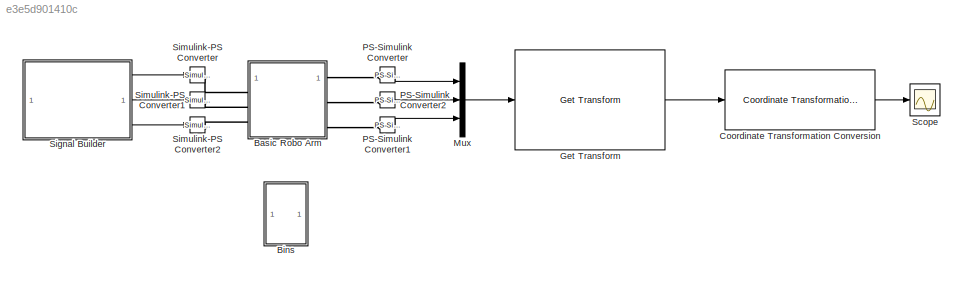
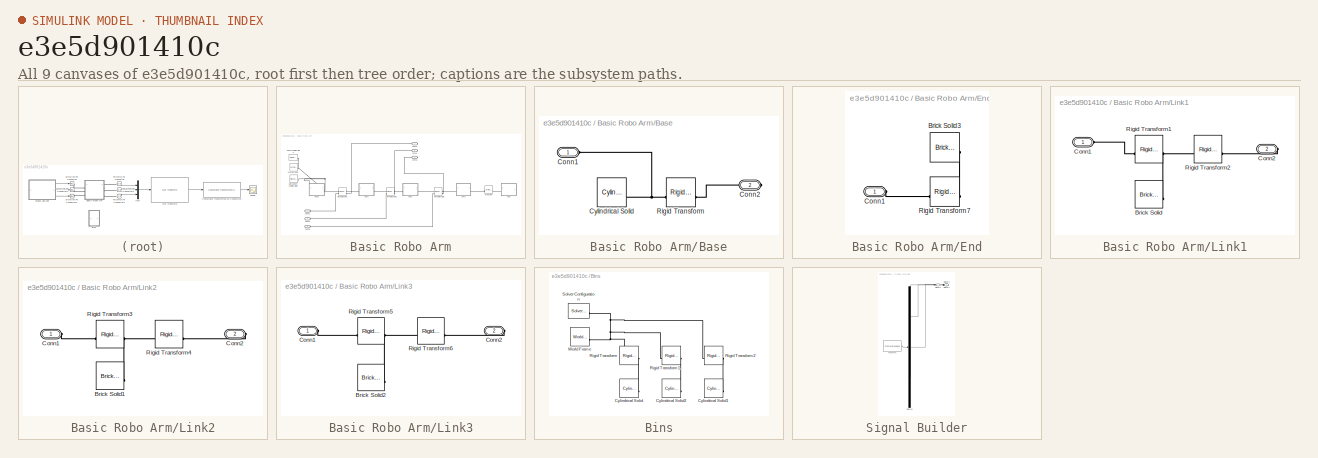
[diagram: thumbnail index - all 9 canvases of the model, root first then tree order]
MODEL slx_e3e5d901410c
KIND model
CONFIG AbsTol = auto
CONFIG EnableMultiTasking = off
CONFIG FixedStep = auto
CONFIG MaxStep = auto
CONFIG MinStep = auto
CONFIG RelTol = 1e-3
CONFIG SampleTimeConstraint = Unconstrained
CONFIG SolverName = VariableStepAuto
CONFIG StartTime = 0.0
CONFIG StopTime = 10.0
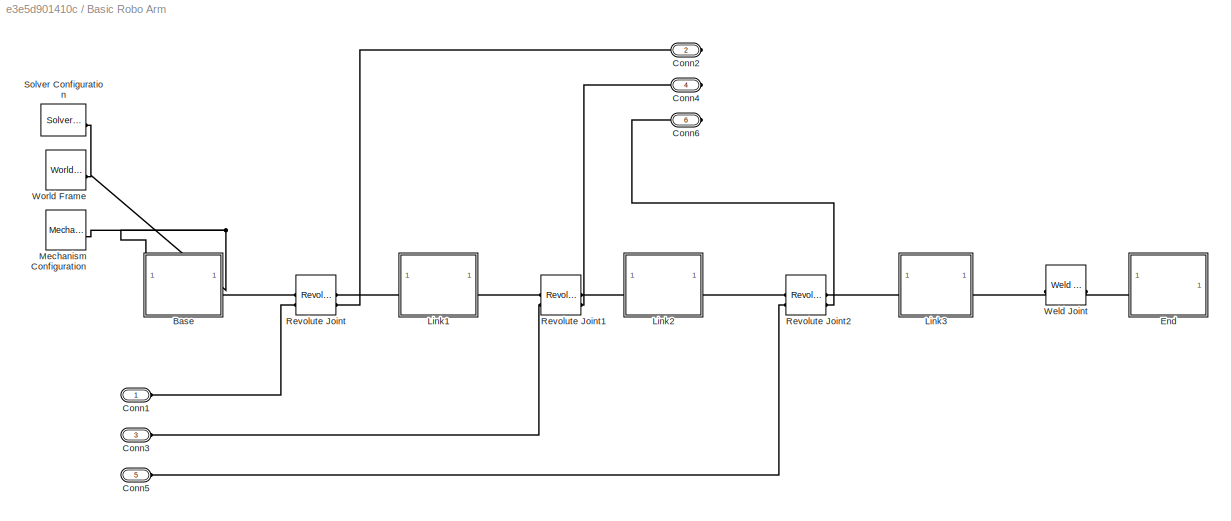
BLOCK [SubSystem] Basic Robo Arm
BLOCK [SubSystem] Basic Robo Arm/Base
BLOCK [PMIOPort] Basic Robo Arm/Base/Conn1
  Side = Left
BLOCK [PMIOPort] Basic Robo Arm/Base/Conn2
  Port = 2
  Side = Right
BLOCK [Reference] Basic Robo Arm/Base/Cylindrical Solid  REF=sm_lib/Body Elements/Cylindrical Solid
  SourceBlock = sm_lib/Body Elements/Cylindrical Solid
  SourceType = Cylindrical Solid
BLOCK [Reference] Basic Robo Arm/Base/Rigid Transform  REF=sm_lib/Frames and
Transforms/Rigid
Transform
  SourceBlock = sm_lib/Frames and\nTransforms/Rigid\nTransform
  SourceType = Rigid\nTransform
BLOCK [PMIOPort] Basic Robo Arm/Conn1
  Side = Left
BLOCK [PMIOPort] Basic Robo Arm/Conn2
  Port = 2
  Side = Right
BLOCK [PMIOPort] Basic Robo Arm/Conn3
  Port = 3
  Side = Left
BLOCK [PMIOPort] Basic Robo Arm/Conn4
  Port = 4
  Side = Right
BLOCK [PMIOPort] Basic Robo Arm/Conn5
  Port = 5
  Side = Left
BLOCK [PMIOPort] Basic Robo Arm/Conn6
  Port = 6
  Side = Right
BLOCK [SubSystem] Basic Robo Arm/End
BLOCK [Reference] Basic Robo Arm/End/Brick Solid3  REF=sm_lib/Body Elements/Brick Solid
  SourceBlock = sm_lib/Body Elements/Brick Solid
  SourceType = Brick Solid
BLOCK [PMIOPort] Basic Robo Arm/End/Conn1
  Side = Left
BLOCK [Reference] Basic Robo Arm/End/Rigid Transform7  REF=sm_lib/Frames and
Transforms/Rigid
Transform
  SourceBlock = sm_lib/Frames and\nTransforms/Rigid\nTransform
  SourceType = Rigid\nTransform
BLOCK [SubSystem] Basic Robo Arm/Link1
BLOCK [Reference] Basic Robo Arm/Link1/Brick Solid  REF=sm_lib/Body Elements/Brick Solid
  SourceBlock = sm_lib/Body Elements/Brick Solid
  SourceType = Brick Solid
BLOCK [PMIOPort] Basic Robo Arm/Link1/Conn1
  Side = Left
BLOCK [PMIOPort] Basic Robo Arm/Link1/Conn2
  Port = 2
  Side = Right
BLOCK [Reference] Basic Robo Arm/Link1/Rigid Transform1  REF=sm_lib/Frames and
Transforms/Rigid
Transform
  SourceBlock = sm_lib/Frames and\nTransforms/Rigid\nTransform
  SourceType = Rigid\nTransform
BLOCK [Reference] Basic Robo Arm/Link1/Rigid Transform2  REF=sm_lib/Frames and
Transforms/Rigid
Transform
  SourceBlock = sm_lib/Frames and\nTransforms/Rigid\nTransform
  SourceType = Rigid\nTransform
BLOCK [SubSystem] Basic Robo Arm/Link2
BLOCK [Reference] Basic Robo Arm/Link2/Brick Solid1  REF=sm_lib/Body Elements/Brick Solid
  SourceBlock = sm_lib/Body Elements/Brick Solid
  SourceType = Brick Solid
BLOCK [PMIOPort] Basic Robo Arm/Link2/Conn1
  Side = Left
BLOCK [PMIOPort] Basic Robo Arm/Link2/Conn2
  Port = 2
  Side = Right
BLOCK [Reference] Basic Robo Arm/Link2/Rigid Transform3  REF=sm_lib/Frames and
Transforms/Rigid
Transform
  SourceBlock = sm_lib/Frames and\nTransforms/Rigid\nTransform
  SourceType = Rigid\nTransform
BLOCK [Reference] Basic Robo Arm/Link2/Rigid Transform4  REF=sm_lib/Frames and
Transforms/Rigid
Transform
  SourceBlock = sm_lib/Frames and\nTransforms/Rigid\nTransform
  SourceType = Rigid\nTransform
BLOCK [SubSystem] Basic Robo Arm/Link3
BLOCK [Reference] Basic Robo Arm/Link3/Brick Solid2  REF=sm_lib/Body Elements/Brick Solid
  SourceBlock = sm_lib/Body Elements/Brick Solid
  SourceType = Brick Solid
BLOCK [PMIOPort] Basic Robo Arm/Link3/Conn1
  Side = Left
BLOCK [PMIOPort] Basic Robo Arm/Link3/Conn2
  Port = 2
  Side = Right
BLOCK [Reference] Basic Robo Arm/Link3/Rigid Transform5  REF=sm_lib/Frames and
Transforms/Rigid
Transform
  SourceBlock = sm_lib/Frames and\nTransforms/Rigid\nTransform
  SourceType = Rigid\nTransform
BLOCK [Reference] Basic Robo Arm/Link3/Rigid Transform6  REF=sm_lib/Frames and
Transforms/Rigid
Transform
  SourceBlock = sm_lib/Frames and\nTransforms/Rigid\nTransform
  SourceType = Rigid\nTransform
BLOCK [Reference] Basic Robo Arm/Mechanism Configuration  REF=sm_lib/Utilities/Mechanism
Configuration
  SourceBlock = sm_lib/Utilities/Mechanism\nConfiguration
  SourceType = Mechanism\nConfiguration
BLOCK [Reference] Basic Robo Arm/Revolute Joint  REF=sm_lib/Joints/Revolute Joint
  SourceBlock = sm_lib/Joints/Revolute Joint
  SourceType = Revolute Joint
BLOCK [Reference] Basic Robo Arm/Revolute Joint1  REF=sm_lib/Joints/Revolute Joint
  SourceBlock = sm_lib/Joints/Revolute Joint
  SourceType = Revolute Joint
BLOCK [Reference] Basic Robo Arm/Revolute Joint2  REF=sm_lib/Joints/Revolute Joint
  SourceBlock = sm_lib/Joints/Revolute Joint
  SourceType = Revolute Joint
BLOCK [Reference] Basic Robo Arm/Solver Configuration  REF=nesl_utility/Solver
Configuration
  SourceBlock = nesl_utility/Solver\nConfiguration
  SourceType = Solver\nConfiguration
BLOCK [Reference] Basic Robo Arm/Weld Joint  REF=sm_lib/Joints/Weld Joint
  SourceBlock = sm_lib/Joints/Weld Joint
  SourceType = Weld Joint
BLOCK [Reference] Basic Robo Arm/World Frame  REF=sm_lib/Frames and
Transforms/World Frame
  SourceBlock = sm_lib/Frames and\nTransforms/World Frame
  SourceType = World Frame
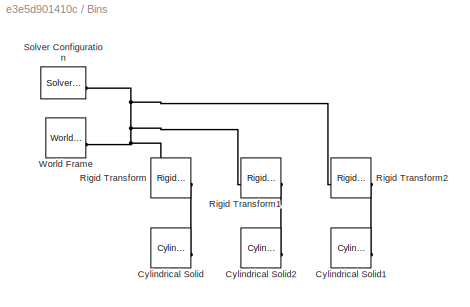
BLOCK [SubSystem] Bins
BLOCK [Reference] Bins/Cylindrical Solid  REF=sm_lib/Body Elements/Cylindrical Solid
  SourceBlock = sm_lib/Body Elements/Cylindrical Solid
  SourceType = Cylindrical Solid
BLOCK [Reference] Bins/Cylindrical Solid1  REF=sm_lib/Body Elements/Cylindrical Solid
  SourceBlock = sm_lib/Body Elements/Cylindrical Solid
  SourceType = Cylindrical Solid
BLOCK [Reference] Bins/Cylindrical Solid2  REF=sm_lib/Body Elements/Cylindrical Solid
  SourceBlock = sm_lib/Body Elements/Cylindrical Solid
  SourceType = Cylindrical Solid
BLOCK [Reference] Bins/Rigid Transform  REF=sm_lib/Frames and
Transforms/Rigid
Transform
  SourceBlock = sm_lib/Frames and\nTransforms/Rigid\nTransform
  SourceType = Rigid\nTransform
BLOCK [Reference] Bins/Rigid Transform1  REF=sm_lib/Frames and
Transforms/Rigid
Transform
  SourceBlock = sm_lib/Frames and\nTransforms/Rigid\nTransform
  SourceType = Rigid\nTransform
BLOCK [Reference] Bins/Rigid Transform2  REF=sm_lib/Frames and
Transforms/Rigid
Transform
  SourceBlock = sm_lib/Frames and\nTransforms/Rigid\nTransform
  SourceType = Rigid\nTransform
BLOCK [Reference] Bins/Solver Configuration  REF=nesl_utility/Solver
Configuration
  SourceBlock = nesl_utility/Solver\nConfiguration
  SourceType = Solver\nConfiguration
BLOCK [Reference] Bins/World Frame  REF=sm_lib/Frames and
Transforms/World Frame
  SourceBlock = sm_lib/Frames and\nTransforms/World Frame
  SourceType = World Frame
BLOCK [Reference] Coordinate Transformation Conversion  REF=robotcorelib/Coordinate Transformation Conversion
  LibrarySourceBlock = robotutilslib/Coordinate Transformation Conversion
  SourceBlock = robotcorelib/Coordinate Transformation Conversion
  SourceType = robotics.slcore.internal.block.CoordinateTransformationConversion
BLOCK [Reference] Get Transform  REF=robotmaniplib/Get Transform
  SourceBlock = robotmaniplib/Get Transform
  SourceType = Get Transform
BLOCK [Mux] Mux
  DisplayOption = bar
  Inputs = 3
BLOCK [Reference] PS-Simulink Converter  REF=nesl_utility/PS-Simulink
Converter
  SourceBlock = nesl_utility/PS-Simulink\nConverter
  SourceType = PS-Simulink\nConverter
BLOCK [Reference] PS-Simulink Converter1  REF=nesl_utility/PS-Simulink
Converter
  SourceBlock = nesl_utility/PS-Simulink\nConverter
  SourceType = PS-Simulink\nConverter
BLOCK [Reference] PS-Simulink Converter2  REF=nesl_utility/PS-Simulink
Converter
  SourceBlock = nesl_utility/PS-Simulink\nConverter
  SourceType = PS-Simulink\nConverter
BLOCK [Scope] Scope
  Floating = off
  NumInputPorts = 1
  ScopeSpecificationString = Simulink.scopes.TimeScopeBlockCfg('CurrentConfiguration', extmgr.ConfigurationSet(extmgr.Configuration('Core','General UI',true),extmgr.Configuration('Core','Source UI',true),extmgr.Configuration('Sources','WiredSimulink',true),extmgr.Configuration('Visuals','Time Domain',true,'SerializedDisplays',{struct('MinYLimReal','-0.36178','MaxYLimReal','0.56797','YLabelReal','','MinYLimMag','0.00000','MaxY...<+1440ch>
BLOCK [SubSystem] Signal Builder
  ClipboardFcn = sigbuilder_block('clipboard');
  CloseFcn = sigbuilder_block('close');
  ContinueFcn = sigbuilder_block('continue');
  CopyFcn = sigbuilder_block('copy');
  DeleteFcn = sigbuilder_block('delete');
  LoadFcn = sigbuilder_block('load');
  MaskHideContents = on
  ModelCloseFcn = sigbuilder_block('modelClose');
  NameChangeFcn = sigbuilder_block('namechange');
  OpenFcn = sigbuilder_block('open',[135 72 550.5 390 ]);
  PauseFcn = sigbuilder_block('pause');
  PreSaveFcn = sigbuilder_block('preSave');
  StartFcn = sigbuilder_block('start');
  StopFcn = sigbuilder_block('stop');
  Tag = STV Subsys
BLOCK [Demux] Signal Builder/Demux
  DisplayOption = none
  Outputs = 3
  Tag = STV Demux
BLOCK [FromWorkspace] Signal Builder/FromWs
  Tag = STV FromWs
  VariableName = tuvar
BLOCK [Outport] Signal Builder/Signal 1
  Tag = STV Outport
BLOCK [Outport] Signal Builder/Signal 2
  Port = 2
  Tag = STV Outport
BLOCK [Outport] Signal Builder/Signal 3
  Port = 3
  Tag = STV Outport
BLOCK [Reference] Simulink-PS Converter  REF=nesl_utility/Simulink-PS
Converter
  SourceBlock = nesl_utility/Simulink-PS\nConverter
  SourceType = Simulink-PS\nConverter
BLOCK [Reference] Simulink-PS Converter1  REF=nesl_utility/Simulink-PS
Converter
  SourceBlock = nesl_utility/Simulink-PS\nConverter
  SourceType = Simulink-PS\nConverter
BLOCK [Reference] Simulink-PS Converter2  REF=nesl_utility/Simulink-PS
Converter
  SourceBlock = nesl_utility/Simulink-PS\nConverter
  SourceType = Simulink-PS\nConverter
LINE Coordinate Transformation Conversion:1 -> Scope:1
LINE Get Transform:1 -> Coordinate Transformation Conversion:1
LINE Mux:1 -> Get Transform:1
LINE PS-Simulink Converter1:1 -> Mux:3
LINE PS-Simulink Converter2:1 -> Mux:2
LINE PS-Simulink Converter:1 -> Mux:1
LINE Signal Builder:1 -> Simulink-PS Converter:1
LINE Signal Builder:2 -> Simulink-PS Converter1:1
LINE Signal Builder:3 -> Simulink-PS Converter2:1
PNET net1: Basic Robo Arm/Base/Conn1:RConn1 -- Basic Robo Arm/Base/Cylindrical Solid:RConn1 -- Basic Robo Arm/Base/Rigid Transform:LConn1
PLINE Basic Robo Arm/Base/Conn2:RConn1 -- Basic Robo Arm/Base/Rigid Transform:RConn1
PNET net2: Basic Robo Arm/Base:LConn1 -- Basic Robo Arm/Mechanism Configuration:RConn1 -- Basic Robo Arm/Solver Configuration:RConn1 -- Basic Robo Arm/World Frame:RConn1
PLINE Basic Robo Arm/Base:RConn1 -- Basic Robo Arm/Revolute Joint:LConn1
PLINE Basic Robo Arm/Conn1:RConn1 -- Basic Robo Arm/Revolute Joint:LConn2
PLINE Basic Robo Arm/Conn2:RConn1 -- Basic Robo Arm/Revolute Joint:RConn2
PLINE Basic Robo Arm/Conn3:RConn1 -- Basic Robo Arm/Revolute Joint1:LConn2
PLINE Basic Robo Arm/Conn4:RConn1 -- Basic Robo Arm/Revolute Joint1:RConn2
PLINE Basic Robo Arm/Conn5:RConn1 -- Basic Robo Arm/Revolute Joint2:LConn2
PLINE Basic Robo Arm/Conn6:RConn1 -- Basic Robo Arm/Revolute Joint2:RConn2
PLINE Basic Robo Arm/End/Brick Solid3:RConn1 -- Basic Robo Arm/End/Rigid Transform7:RConn1
PLINE Basic Robo Arm/End/Conn1:RConn1 -- Basic Robo Arm/End/Rigid Transform7:LConn1
PLINE Basic Robo Arm/End:LConn1 -- Basic Robo Arm/Weld Joint:RConn1
PNET net3: Basic Robo Arm/Link1/Brick Solid:RConn1 -- Basic Robo Arm/Link1/Rigid Transform1:RConn1 -- Basic Robo Arm/Link1/Rigid Transform2:LConn1
PLINE Basic Robo Arm/Link1/Conn1:RConn1 -- Basic Robo Arm/Link1/Rigid Transform1:LConn1
PLINE Basic Robo Arm/Link1/Conn2:RConn1 -- Basic Robo Arm/Link1/Rigid Transform2:RConn1
PLINE Basic Robo Arm/Link1:LConn1 -- Basic Robo Arm/Revolute Joint:RConn1
PLINE Basic Robo Arm/Link1:RConn1 -- Basic Robo Arm/Revolute Joint1:LConn1
PNET net4: Basic Robo Arm/Link2/Brick Solid1:RConn1 -- Basic Robo Arm/Link2/Rigid Transform3:RConn1 -- Basic Robo Arm/Link2/Rigid Transform4:LConn1
PLINE Basic Robo Arm/Link2/Conn1:RConn1 -- Basic Robo Arm/Link2/Rigid Transform3:LConn1
PLINE Basic Robo Arm/Link2/Conn2:RConn1 -- Basic Robo Arm/Link2/Rigid Transform4:RConn1
PLINE Basic Robo Arm/Link2:LConn1 -- Basic Robo Arm/Revolute Joint1:RConn1
PLINE Basic Robo Arm/Link2:RConn1 -- Basic Robo Arm/Revolute Joint2:LConn1
PNET net5: Basic Robo Arm/Link3/Brick Solid2:RConn1 -- Basic Robo Arm/Link3/Rigid Transform5:RConn1 -- Basic Robo Arm/Link3/Rigid Transform6:LConn1
PLINE Basic Robo Arm/Link3/Conn1:RConn1 -- Basic Robo Arm/Link3/Rigid Transform5:LConn1
PLINE Basic Robo Arm/Link3/Conn2:RConn1 -- Basic Robo Arm/Link3/Rigid Transform6:RConn1
PLINE Basic Robo Arm/Link3:LConn1 -- Basic Robo Arm/Revolute Joint2:RConn1
PLINE Basic Robo Arm/Link3:RConn1 -- Basic Robo Arm/Weld Joint:LConn1
PLINE Basic Robo Arm:LConn1 -- Simulink-PS Converter:RConn1
PLINE Basic Robo Arm:LConn2 -- Simulink-PS Converter1:RConn1
PLINE Basic Robo Arm:LConn3 -- Simulink-PS Converter2:RConn1
PLINE Basic Robo Arm:RConn1 -- PS-Simulink Converter:LConn1
PLINE Basic Robo Arm:RConn2 -- PS-Simulink Converter2:LConn1
PLINE Basic Robo Arm:RConn3 -- PS-Simulink Converter1:LConn1
PLINE Bins/Cylindrical Solid1:RConn1 -- Bins/Rigid Transform2:RConn1
PLINE Bins/Cylindrical Solid2:RConn1 -- Bins/Rigid Transform1:RConn1
PLINE Bins/Cylindrical Solid:RConn1 -- Bins/Rigid Transform:RConn1
PNET net6: Bins/Rigid Transform1:LConn1 -- Bins/Rigid Transform2:LConn1 -- Bins/Rigid Transform:LConn1 -- Bins/Solver Configuration:RConn1 -- Bins/World Frame:RConn1
note: PNET lines group multi-terminal physical nets as a canonical sorted terminal list (undirected conserving connections); 2-terminal nets keep the pairwise PLINE form
